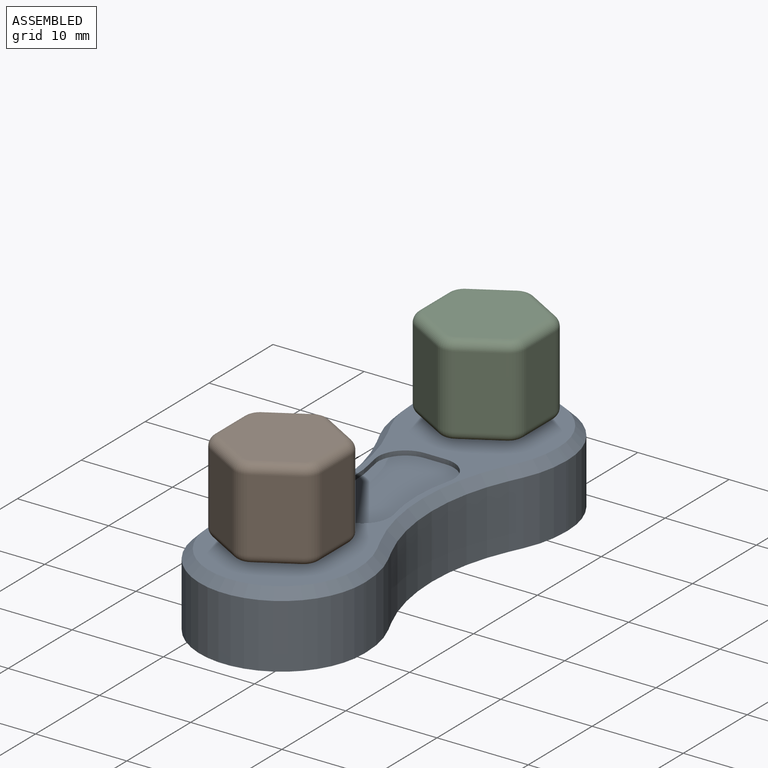
[diagram: assembled view]
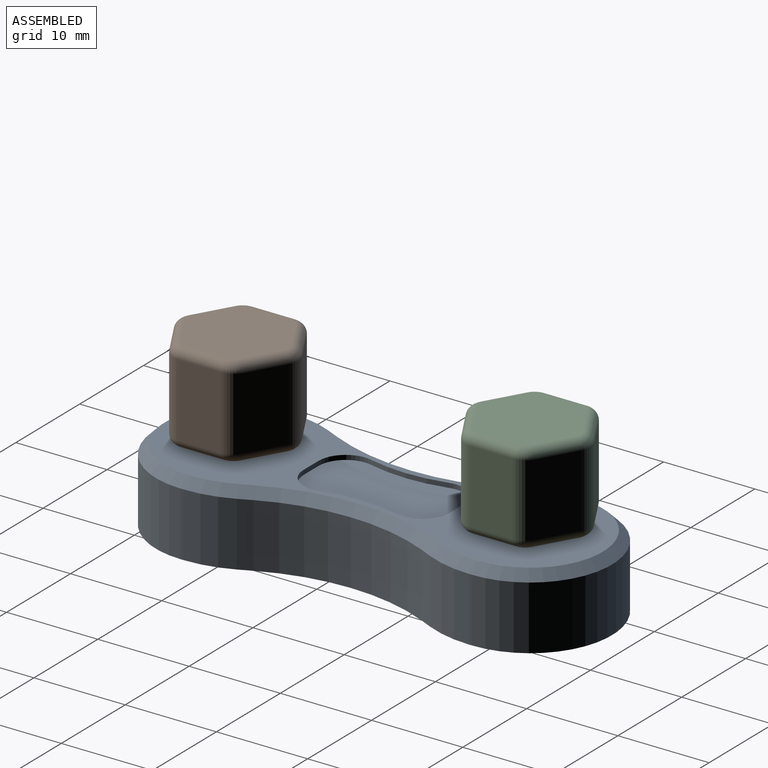
[diagram: assembled view, second angle]
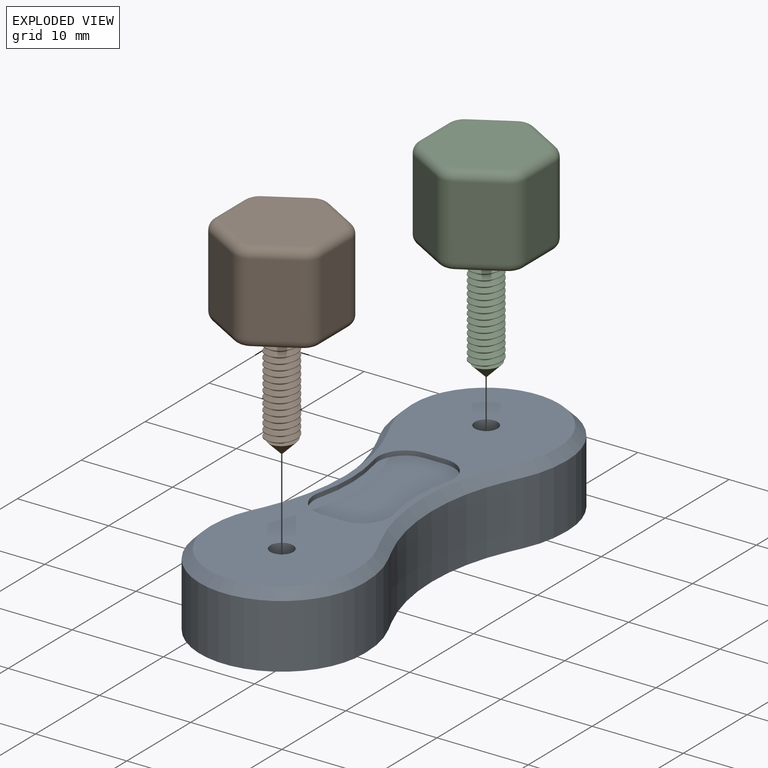
[diagram: exploded view]
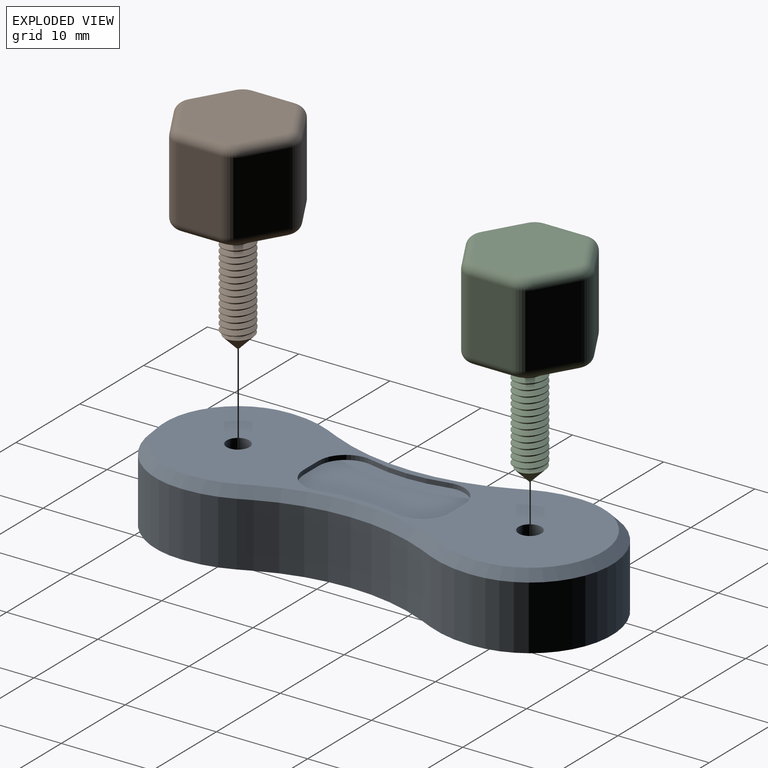
[diagram: exploded view, second angle]
ASSEMBLY  parts=3 mates=2
PART A: 53 faces, bbox 18x50x8 mm
  f0: cylinder r=12mm len=7mm, axis (0,0,-1), area 36.3mm2, adj f1,f15,f17,f40
  f1: plane 7x0.36mm, normal (1,0,0), area 2.6mm2, adj f0,f2,f17,f38
  f2: cylinder r=9mm len=18mm, axis (0,0,-1), area 197.9mm2, adj f1,f3,f17,f37
  f3: plane 7x0.36mm, normal (-1,0,0), area 2.6mm2, adj f2,f4,f17,f39
  f4: cylinder r=12mm len=7mm, axis (0,0,-1), area 36.3mm2, adj f3,f5,f17,f41
  f5: plane 7x1.39mm, normal (-0.91,-0.42,0), area 10.7mm2, adj f4,f6,f17,f43
  f6: cylinder r=22mm len=18.44mm, axis (0,0,-1), area 133.2mm2, adj f5,f7,f17,f45
  f7: plane 7x1.39mm, normal (-0.91,0.42,0), area 10.7mm2, adj f6,f8,f17,f47
  f8: cylinder r=12mm len=7mm, axis (0,0,-1), area 36.3mm2, adj f7,f9,f17,f49
  f9: plane 7x0.36mm, normal (-1,0,0), area 2.6mm2, adj f8,f10,f17,f51
  f10: cylinder r=9mm len=18mm, axis (0,0,-1), area 197.9mm2, adj f9,f11,f17,f52
  f11: plane 7x0.36mm, normal (1,0,0), area 2.6mm2, adj f10,f12,f17,f50
  f12: cylinder r=12mm len=7mm, axis (0,0,-1), area 36.3mm2, adj f11,f13,f17,f48
  f13: plane 7x1.39mm, normal (0.91,0.42,0), area 10.7mm2, adj f12,f14,f17,f46
  f14: cylinder r=22mm len=18.44mm, axis (0,0,-1), area 133.2mm2, adj f13,f15,f17,f44
  f15: plane 7x1.39mm, normal (0.91,-0.42,0), area 10.7mm2, adj f0,f14,f17,f42
  f16: plane 48x16mm, normal (0,0,1), area 453.6mm2, adj f18,f19,f24,f25,f26,f27,f28,f29
  f17: plane 50x18mm, normal (0,0,-1), area 681.1mm2, adj f0,f1,f2,f3,f4,f5,f6,f7
  f18: cylinder r=1.25mm len=8mm, axis (0,0,-1), area 62.8mm2, adj f16,f17
  f19: cylinder r=1.25mm len=8mm, axis (0,0,-1), area 62.8mm2, adj f16,f17
  f20: cylinder r=1.25mm len=6.5mm, axis (0,0,-1), area 51.1mm2, adj f17,f21
  f21: plane 2.5x2.5mm, normal (0,0,-1), area 4.9mm2, adj f20
  f22: cylinder r=1.25mm len=6.5mm, axis (0,0,-1), area 51.1mm2, adj f17,f23
  f23: plane 2.5x2.5mm, normal (0,0,-1), area 4.9mm2, adj f22
  f24: plane 2.32x0.5mm, normal (0,1,0), area 1.2mm2, adj f16,f25,f35,f36
  f25: cylinder r=3mm len=3.73mm, axis (0,0,1), area 2.7mm2, adj f16,f24,f26,f36
  f26: plane 0.5x0.15mm, normal (-0.97,-0.24,0), area 0.1mm2, adj f16,f25,f27,f36
  f27: cylinder r=17mm len=8.25mm, axis (0,0,1), area 4.2mm2, adj f16,f26,f28,f36
  f28: plane 0.5x0.15mm, normal (-0.97,0.24,0), area 0.1mm2, adj f16,f27,f29,f36
  f29: cylinder r=3mm len=3.73mm, axis (0,0,1), area 2.7mm2, adj f16,f28,f30,f36
  f30: plane 2.32x0.5mm, normal (0,-1,0), area 1.2mm2, adj f16,f29,f31,f36
  f31: cylinder r=3mm len=3.73mm, axis (0,0,1), area 2.7mm2, adj f16,f30,f32,f36
  f32: plane 0.5x0.15mm, normal (0.97,0.24,0), area 0.1mm2, adj f16,f31,f33,f36
  f33: cylinder r=17mm len=8.25mm, axis (0,0,1), area 4.2mm2, adj f16,f32,f34,f36
  f34: plane 0.5x0.15mm, normal (0.97,-0.24,0), area 0.1mm2, adj f16,f33,f35,f36
  f35: cylinder r=3mm len=3.73mm, axis (0,0,1), area 2.7mm2, adj f16,f24,f34,f36
  f36: plane 16x8.32mm, normal (0,0,1), area 117.5mm2, adj f24,f25,f26,f27,f28,f29,f30,f31
  f37: cone r=8mm half-angle=45deg, axis (0,0,-1), area 37.8mm2, adj f2,f16,f38,f39
  f38: plane 1x1mm, normal (0.71,0,0.71), area 0.5mm2, adj f1,f16,f37,f40
  f39: plane 1x1mm, normal (-0.71,0,0.71), area 0.5mm2, adj f3,f16,f37,f41
  f40: cone r=11mm half-angle=45deg, axis (0,0,-1), area 7mm2, adj f0,f16,f38,f42
  f41: cone r=12mm half-angle=45deg, axis (0,0,-1), area 7mm2, adj f4,f16,f39,f43
  f42: plane 1.81x1.55mm, normal (0.64,-0.3,0.71), area 2.2mm2, adj f15,f16,f40,f44
  f43: plane 1.81x1.55mm, normal (-0.64,-0.3,0.71), area 2.2mm2, adj f5,f16,f41,f45
  f44: cone r=22mm half-angle=45deg, axis (0,0,1), area 27.5mm2, adj f14,f16,f42,f46
  f45: cone r=23mm half-angle=45deg, axis (0,0,1), area 27.5mm2, adj f6,f16,f43,f47
  f46: plane 1.81x1.55mm, normal (0.64,0.3,0.71), area 2.2mm2, adj f13,f16,f44,f48
  f47: plane 1.81x1.55mm, normal (-0.64,0.3,0.71), area 2.2mm2, adj f7,f16,f45,f49
  f48: cone r=11mm half-angle=45deg, axis (0,0,-1), area 7mm2, adj f12,f16,f46,f50
  f49: cone r=12mm half-angle=45deg, axis (0,0,-1), area 7mm2, adj f8,f16,f47,f51
  f50: plane 1x1mm, normal (0.71,0,0.71), area 0.5mm2, adj f11,f16,f48,f52
  f51: plane 1x1mm, normal (-0.71,0,0.71), area 0.5mm2, adj f9,f16,f49,f52
  f52: cone r=9mm half-angle=45deg, axis (0,0,-1), area 37.8mm2, adj f10,f16,f50,f51
PART B: 46 faces, bbox 12.3x13.6x23 mm
  f0: cylinder r=1.75mm len=11.3mm, axis (0,0,1), area 23.3mm2, adj f9,f40,f42,f43,f44
  f1: plane 0.1x0.1mm, normal (0,0,-1), area 0mm2, adj f45
  f2: plane 8x4mm, normal (0.5,0.87,0), area 37mm2, adj f10,f11,f24,f38
  f3: plane 8x4mm, normal (-0.5,0.87,0), area 37mm2, adj f11,f12,f27,f34
  f4: plane 8x4.62mm, normal (-1,0,0), area 37mm2, adj f12,f13,f23,f30
  f5: plane 8x4mm, normal (-0.5,-0.87,0), area 37mm2, adj f13,f14,f19,f29
  f6: plane 8x4mm, normal (0.5,-0.87,0), area 37mm2, adj f14,f15,f16,f33
  f7: plane 8x4.62mm, normal (1,0,0), area 37mm2, adj f10,f15,f20,f37
  f8: plane 11.24x10mm, normal (0,0,1), area 86.3mm2, adj f28,f29,f30,f31,f32,f33,f34,f35
  f9: plane 11.24x10mm, normal (0,0,-1), area 76.7mm2, adj f0,f16,f17,f18,f19,f20,f21,f22
  f10: cylinder r=2mm len=8mm, axis (0,0,-1), area 16.8mm2, adj f2,f7,f22,f39
  f11: cylinder r=2mm len=8mm, axis (0,0,-1), area 16.8mm2, adj f2,f3,f26,f36
  f12: cylinder r=2mm len=8mm, axis (0,0,-1), area 16.8mm2, adj f3,f4,f25,f32
  f13: cylinder r=2mm len=8mm, axis (0,0,-1), area 16.8mm2, adj f4,f5,f21,f28
  f14: cylinder r=2mm len=8mm, axis (0,0,-1), area 16.8mm2, adj f5,f6,f17,f31
  f15: cylinder r=2mm len=8mm, axis (0,0,-1), area 16.8mm2, adj f6,f7,f18,f35
  f16: cylinder r=1mm len=4.5mm, axis (0.87,0.5,0), area 7.3mm2, adj f6,f9,f17,f18
  f17: torus R=1mm, axis (0,0,1), area 2.7mm2, adj f9,f14,f16,f19
  f18: torus R=1mm, axis (0,0,1), area 2.7mm2, adj f9,f15,f16,f20
  f19: cylinder r=1mm len=4.5mm, axis (0.87,-0.5,0), area 7.3mm2, adj f5,f9,f17,f21
  f20: cylinder r=1mm len=4.62mm, axis (0,1,0), area 7.3mm2, adj f7,f9,f18,f22
  f21: torus R=1mm, axis (0,0,1), area 2.7mm2, adj f9,f13,f19,f23
  f22: torus R=1mm, axis (0,0,1), area 2.7mm2, adj f9,f10,f20,f24
  f23: cylinder r=1mm len=4.62mm, axis (0,-1,0), area 7.3mm2, adj f4,f9,f21,f25
  f24: cylinder r=1mm len=4.5mm, axis (-0.87,0.5,0), area 7.3mm2, adj f2,f9,f22,f26
  f25: torus R=1mm, axis (0,0,1), area 2.7mm2, adj f9,f12,f23,f27
  f26: torus R=1mm, axis (0,0,1), area 2.7mm2, adj f9,f11,f24,f27
  f27: cylinder r=1mm len=4.5mm, axis (-0.87,-0.5,0), area 7.3mm2, adj f3,f9,f25,f26
  f28: torus R=1mm, axis (0,0,1), area 2.7mm2, adj f8,f13,f29,f30
  f29: cylinder r=1mm len=4.5mm, axis (-0.87,0.5,0), area 7.3mm2, adj f5,f8,f28,f31
  f30: cylinder r=1mm len=4.62mm, axis (0,1,0), area 7.3mm2, adj f4,f8,f28,f32
  f31: torus R=1mm, axis (0,0,1), area 2.7mm2, adj f8,f14,f29,f33
  f32: torus R=1mm, axis (0,0,1), area 2.7mm2, adj f8,f12,f30,f34
  f33: cylinder r=1mm len=4.5mm, axis (-0.87,-0.5,0), area 7.3mm2, adj f6,f8,f31,f35
  f34: cylinder r=1mm len=4.5mm, axis (0.87,0.5,0), area 7.3mm2, adj f3,f8,f32,f36
  f35: torus R=1mm, axis (0,0,1), area 2.7mm2, adj f8,f15,f33,f37
  f36: torus R=1mm, axis (0,0,1), area 2.7mm2, adj f8,f11,f34,f38
  f37: cylinder r=1mm len=4.62mm, axis (0,-1,0), area 7.3mm2, adj f7,f8,f35,f39
  f38: cylinder r=1mm len=4.5mm, axis (0.87,-0.5,0), area 7.3mm2, adj f2,f8,f36,f39
  f39: torus R=1mm, axis (0,0,1), area 2.7mm2, adj f8,f10,f37,f38
  f40: plane 0.58x0.5mm, normal (0,1,0), area 0.1mm2, adj f0,f41,f42,f43
  f41: cylinder r=1.75mm len=3.5mm, axis (0,0,1), area 1mm2, adj f9,f40,f43
  f42: bspline ~12.21x4.04mm, area 95.9mm2, adj f0,f40,f43,f44,f45
  f43: bspline ~12.21x4.04mm, area 99mm2, adj f0,f40,f41,f42,f44
  f44: cone r=0.05mm half-angle=45deg, axis (0,0,1), area 1mm2, adj f0,f42,f43,f45
  f45: cone r=0.05mm half-angle=45deg, axis (0,0,1), area 9.5mm2, adj f1,f42,f44
PART C: same geometry as B
PLACE A t=(-18.64,-21.68,0.12)mm
PLACE B t=(-18.64,-37.68,9.12)mm
PLACE C t=(-18.64,-5.68,9.12)mm
MATE fastened A.f19 <-> C.f0  axis (0,0,1) through (-18.64,-5.68,8.12)mm
MATE fastened B.f0 <-> A.f18  axis (0,0,-1) through (-18.64,-37.68,9.12)mm
